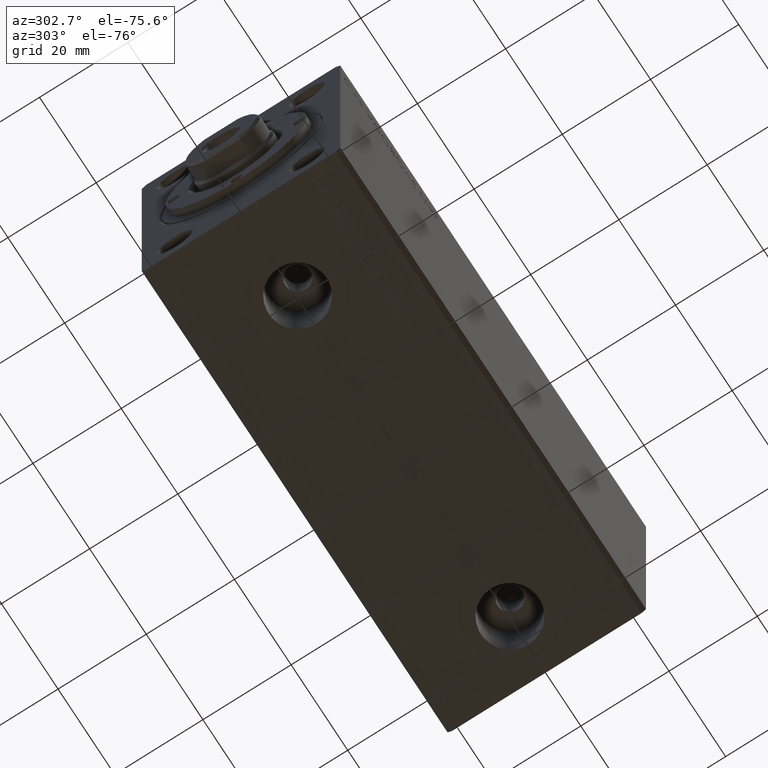
[diagram: clean part render]
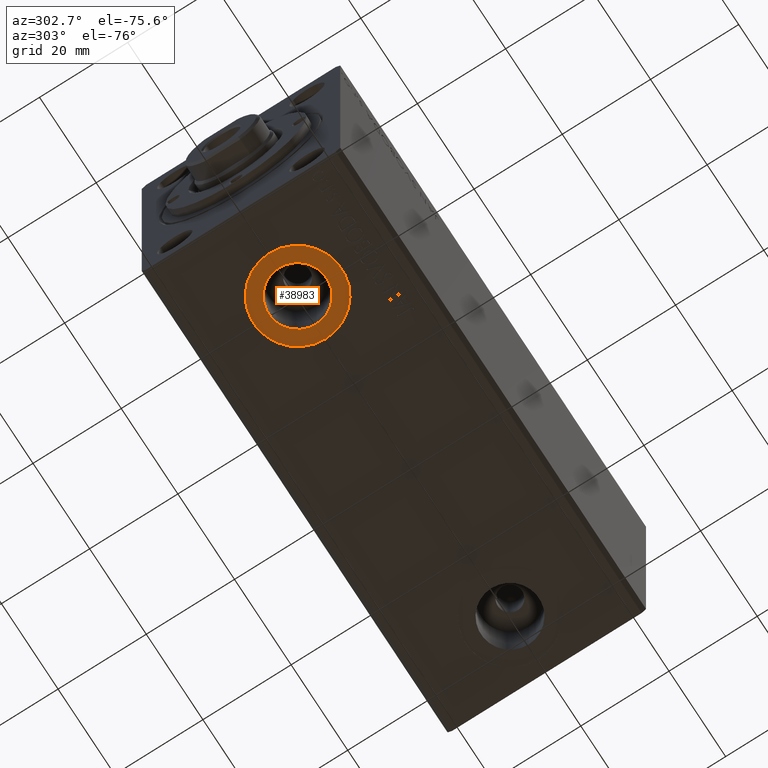
[diagram: same view with one face highlighted and labeled with its STEP entity id]
A machine part, auxiliary view. The second image highlights one B-rep face of the part: STEP entity #38983.
In plain terms, the highlighted planar face has unit normal (0, 0, -1).
Its self-contained STEP definition (entity closure, byte-faithful):
#307 = PLANE ( 'NONE',  #16467 ) ;
#557 = CARTESIAN_POINT ( 'NONE',  ( 9.999999999999996447, 2.578758962896937757E-15, -32.39999999999999858 ) ) ;
#736 = CARTESIAN_POINT ( 'NONE',  ( 0.000000000000000000, 0.000000000000000000, -32.39999999999999858 ) ) ;
#2503 = EDGE_CURVE ( 'NONE', #25089, #22138, #14226, .T. ) ;
#3816 = AXIS2_PLACEMENT_3D ( 'NONE', #38228, #22126, #23228 ) ;
#4401 = CARTESIAN_POINT ( 'NONE',  ( 26.57999999999999829, 3.384576556735897587E-15, -32.39999999999999858 ) ) ;
#4662 = VERTEX_POINT ( 'NONE', #557 ) ;
#4767 = CARTESIAN_POINT ( 'NONE',  ( 19.99999999999999645, 2.578758962896938545E-15, -32.39999999999999858 ) ) ;
#10230 = CARTESIAN_POINT ( 'NONE',  ( 19.99999999999999645, 2.578758962896938545E-15, -32.39999999999999858 ) ) ;
#13381 = CARTESIAN_POINT ( 'NONE',  ( 30.00000000000000000, 3.803405762044290421E-15, -32.39999999999999858 ) ) ;
#14226 = CIRCLE ( 'NONE', #17790, 6.580000000000002736 ) ;
#14807 = EDGE_CURVE ( 'NONE', #36519, #4662, #39666, .T. ) ;
#16024 = AXIS2_PLACEMENT_3D ( 'NONE', #18883, #36770, #39216 ) ;
#16467 = AXIS2_PLACEMENT_3D ( 'NONE', #736, #24170, #31102 ) ;
#16716 = DIRECTION ( 'NONE',  ( 0.000000000000000000, 0.000000000000000000, -1.000000000000000000 ) ) ;
#17790 = AXIS2_PLACEMENT_3D ( 'NONE', #4767, #32263, #29134 ) ;
#18883 = CARTESIAN_POINT ( 'NONE',  ( 19.99999999999999645, 2.578758962896937757E-15, -32.39999999999999858 ) ) ;
#19534 = EDGE_CURVE ( 'NONE', #22138, #25089, #21127, .T. ) ;
#21127 = CIRCLE ( 'NONE', #33303, 6.580000000000002736 ) ;
#21356 = CARTESIAN_POINT ( 'NONE',  ( 13.41999999999999460, 2.578758962896938545E-15, -32.39999999999999858 ) ) ;
#22126 = DIRECTION ( 'NONE',  ( 0.000000000000000000, 0.000000000000000000, -1.000000000000000000 ) ) ;
#22138 = VERTEX_POINT ( 'NONE', #4401 ) ;
#23228 = DIRECTION ( 'NONE',  ( -1.000000000000000000, 0.000000000000000000, 0.000000000000000000 ) ) ;
#23627 = ORIENTED_EDGE ( 'NONE', *, *, #19534, .F. ) ;
#24170 = DIRECTION ( 'NONE',  ( 0.000000000000000000, 0.000000000000000000, -1.000000000000000000 ) ) ;
#25089 = VERTEX_POINT ( 'NONE', #21356 ) ;
#28527 = ORIENTED_EDGE ( 'NONE', *, *, #2503, .F. ) ;
#28806 = EDGE_CURVE ( 'NONE', #4662, #36519, #29512, .T. ) ;
#29134 = DIRECTION ( 'NONE',  ( -1.000000000000000000, 0.000000000000000000, 0.000000000000000000 ) ) ;
#29512 = CIRCLE ( 'NONE', #3816, 10.00000000000000000 ) ;
#30364 = DIRECTION ( 'NONE',  ( -1.000000000000000000, 0.000000000000000000, 0.000000000000000000 ) ) ;
#30894 = FACE_OUTER_BOUND ( 'NONE', #42232, .T. ) ;
#31102 = DIRECTION ( 'NONE',  ( -1.000000000000000000, 0.000000000000000000, -0.000000000000000000 ) ) ;
#32263 = DIRECTION ( 'NONE',  ( 0.000000000000000000, 0.000000000000000000, -1.000000000000000000 ) ) ;
#33303 = AXIS2_PLACEMENT_3D ( 'NONE', #10230, #16716, #30364 ) ;
#36519 = VERTEX_POINT ( 'NONE', #13381 ) ;
#36770 = DIRECTION ( 'NONE',  ( 0.000000000000000000, 0.000000000000000000, -1.000000000000000000 ) ) ;
#38228 = CARTESIAN_POINT ( 'NONE',  ( 19.99999999999999645, 2.578758962896937757E-15, -32.39999999999999858 ) ) ;
#38382 = ORIENTED_EDGE ( 'NONE', *, *, #14807, .T. ) ;
#38548 = ORIENTED_EDGE ( 'NONE', *, *, #28806, .T. ) ;
#38983 = ADVANCED_FACE ( 'NONE', ( #41350, #30894 ), #307, .T. ) ;
#39216 = DIRECTION ( 'NONE',  ( -1.000000000000000000, 0.000000000000000000, 0.000000000000000000 ) ) ;
#39666 = CIRCLE ( 'NONE', #16024, 10.00000000000000000 ) ;
#40536 = EDGE_LOOP ( 'NONE', ( #28527, #23627 ) ) ;
#41350 = FACE_BOUND ( 'NONE', #40536, .T. ) ;
#42232 = EDGE_LOOP ( 'NONE', ( #38548, #38382 ) ) ;